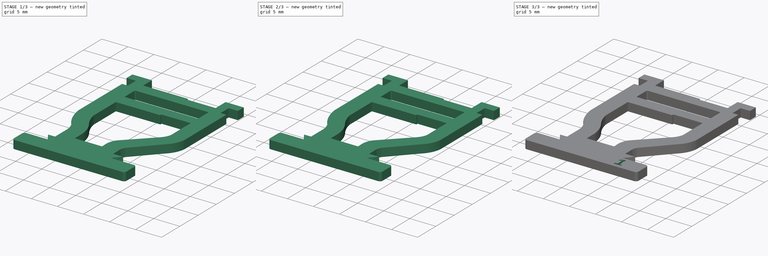
[diagram: build sequence overview — one tinted view per stage of 3, left to right]
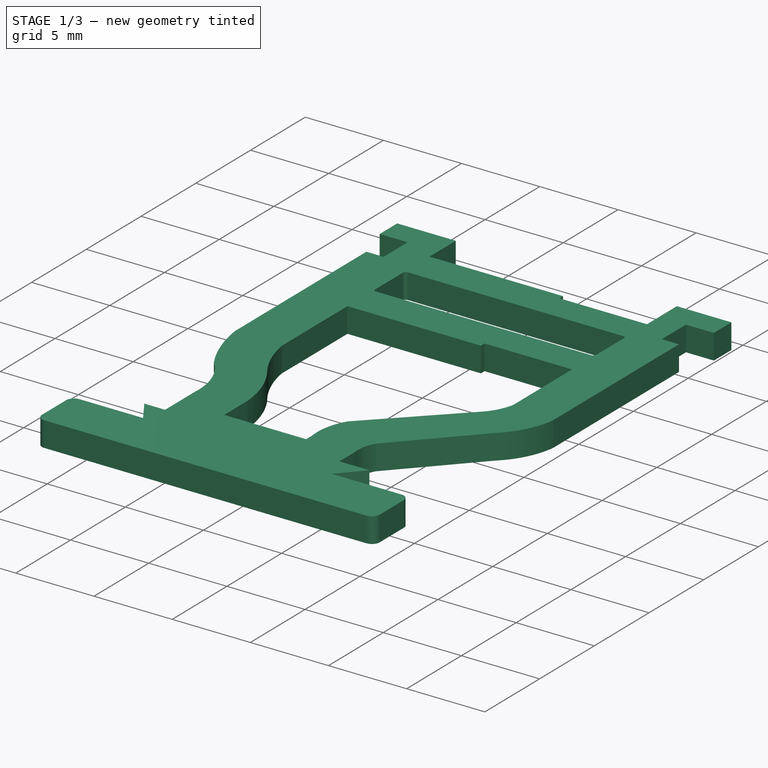
[diagram: stage 1 of 3 — iso view after this stage's code; geometry added in this stage tinted green]
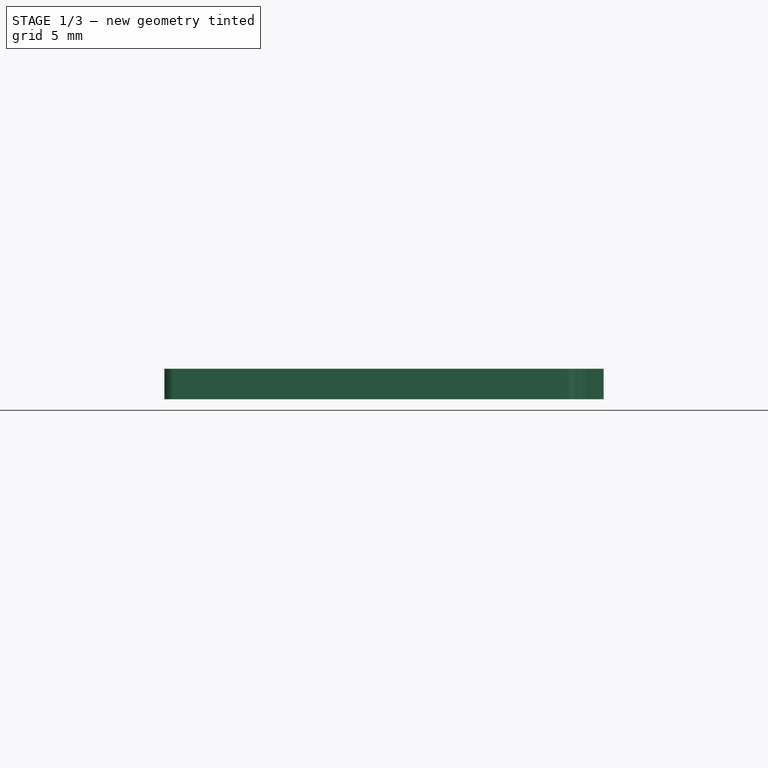
[diagram: stage 1 of 3 — front view after this stage's code; geometry added in this stage tinted green]
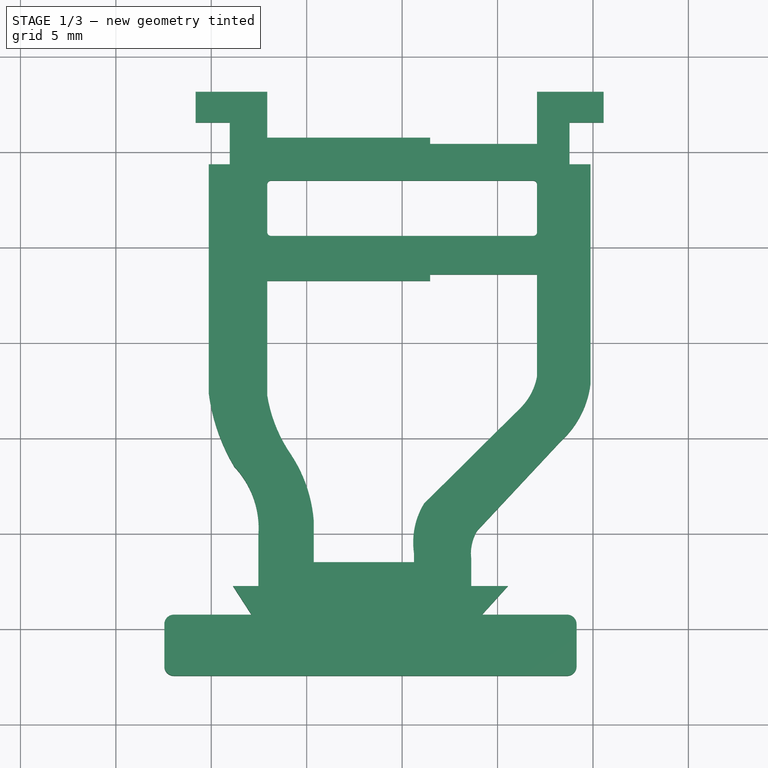
[diagram: stage 1 of 3 — top view after this stage's code; geometry added in this stage tinted green]
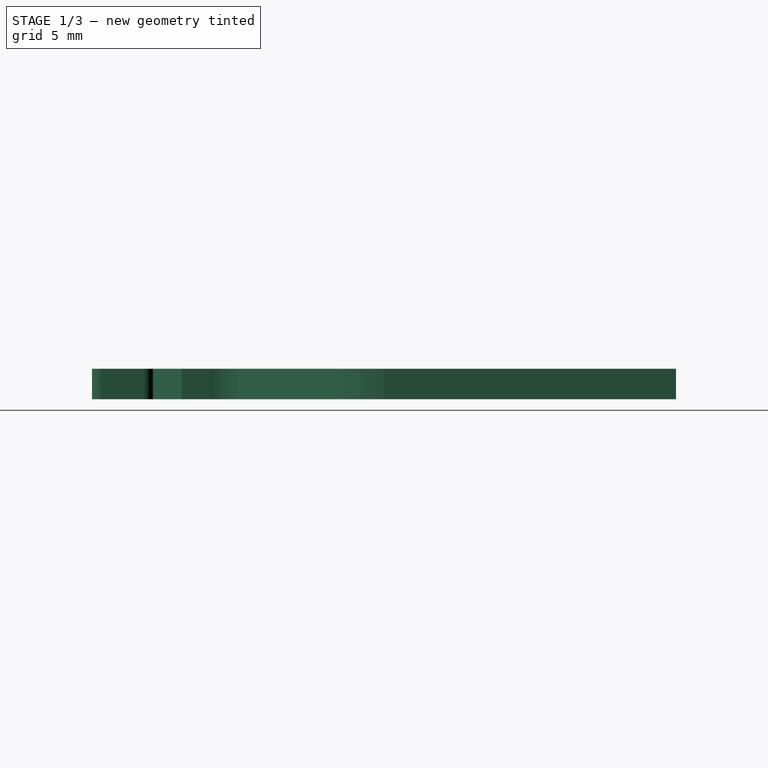
[diagram: stage 1 of 3 — right view after this stage's code; geometry added in this stage tinted green]
FCSTD DOCUMENT  (FreeCAD 0.21R33771 (Git))
Label: WE-P-10B699-706
License: All rights reserved
LicenseURL: http://en.wikipedia.org/wiki/All_rights_reserved
objects: PartDesign::Pocket×5, Sketcher::SketchObject×4, Part::Part2DObjectPython×3, Spreadsheet::Sheet×1, PartDesign::Pad×1, PartDesign::Body×1
note: 20 computed .brp shape members not serialized (recipe doc carries the construction recipe); baked Part::Feature solids carry a one-line shape summary decoded from their .brp

FEATURE [Sketcher::SketchObject] Sketch  label="BlankCardSketch"
  FullyConstrained = false
  MapMode = 5
  Support = -> [XY_Plane]
  sketch-geometry (68):
    g0: LineSegment StartX=-9.03 StartY=9.35 StartZ=0 EndX=-9.03 EndY=11.55 EndZ=0
    g1: LineSegment StartX=-9.03 StartY=11.55 StartZ=0 EndX=-10.82 EndY=11.55 EndZ=0
    g2: LineSegment StartX=-10.82 StartY=11.55 StartZ=0 EndX=-10.82 EndY=13.15 EndZ=0
    g3: LineSegment StartX=8.77 StartY=9.35 StartZ=0 EndX=8.77 EndY=11.55 EndZ=0
    g4: LineSegment StartX=-10.82 StartY=13.15 StartZ=0 EndX=-7.07 EndY=13.15 EndZ=0
    g5: LineSegment StartX=7.07 StartY=13.15 StartZ=0 EndX=-7.07 EndY=13.15 EndZ=0
    g6: LineSegment StartX=7.07 StartY=13.15 StartZ=0 EndX=7.07 EndY=10.75 EndZ=0
    g7: ArcOfCircle CenterX=-6.87 CenterY=8.3 CenterZ=0 NormalX=0 NormalY=0 NormalZ=1 AngleXU=0 Radius=0.2 StartAngle=1.5708 EndAngle=3.14159
    g8: LineSegment StartX=-6.87 StartY=8.5 StartZ=0 EndX=6.87 EndY=8.5 EndZ=0
    g9: ArcOfCircle CenterX=6.87 CenterY=8.3 CenterZ=0 NormalX=0 NormalY=0 NormalZ=1 AngleXU=0 Radius=0.2 StartAngle=-1.8e-15 EndAngle=1.5708
    g10: LineSegment StartX=7.07 StartY=8.3 StartZ=0 EndX=7.07 EndY=5.8 EndZ=0
    g11: ArcOfCircle CenterX=6.87 CenterY=5.8 CenterZ=0 NormalX=0 NormalY=0 NormalZ=1 AngleXU=0 Radius=0.2 StartAngle=4.71239 EndAngle=6.28319
    g12: LineSegment StartX=6.87 StartY=5.6 StartZ=0 EndX=-6.87 EndY=5.6 EndZ=0
    g13: ArcOfCircle CenterX=-6.87 CenterY=5.8 CenterZ=0 NormalX=0 NormalY=0 NormalZ=1 AngleXU=0 Radius=0.2 StartAngle=3.14159 EndAngle=4.71239
    g14: LineSegment StartX=-7.07 StartY=5.8 StartZ=0 EndX=-7.07 EndY=8.3 EndZ=0
    g15: LineSegment StartX=-7.07 StartY=10.75 StartZ=0 EndX=-7.07 EndY=8.3 EndZ=0
    g16: LineSegment StartX=-7.07 StartY=13.15 StartZ=0 EndX=-7.07 EndY=10.75 EndZ=0
    g17: LineSegment StartX=-9.03 StartY=11.55 StartZ=0 EndX=8.77 EndY=11.55 EndZ=0
    g18: LineSegment StartX=6.87 StartY=8.5 StartZ=0 EndX=-1.8578 EndY=8.5 EndZ=0
    g19: LineSegment StartX=7.07 StartY=13.15 StartZ=0 EndX=10.56 EndY=13.15 EndZ=0
    g20: LineSegment StartX=10.56 StartY=13.15 StartZ=0 EndX=10.56 EndY=11.55 EndZ=0
    g21: LineSegment StartX=10.56 StartY=11.55 StartZ=0 EndX=8.77 EndY=11.55 EndZ=0
    g22: LineSegment StartX=-7.07 StartY=10.75 StartZ=0 EndX=7.07 EndY=10.75 EndZ=0
    g23: LineSegment StartX=8.77 StartY=9.35 StartZ=0 EndX=9.87 EndY=9.35 EndZ=0
    g24: LineSegment StartX=-4.63 StartY=-11.5 StartZ=0 EndX=0.62 EndY=-11.5 EndZ=0
    g25: LineSegment StartX=3.62 StartY=-12.75 StartZ=0 EndX=5.54 EndY=-12.75 EndZ=0
    g26: LineSegment StartX=4.18 StartY=-14.25 StartZ=0 EndX=9.14 EndY=-14.25 EndZ=0
    g27: LineSegment StartX=-7.53 StartY=-12.75 StartZ=0 EndX=-8.86 EndY=-12.75 EndZ=0
    g28: LineSegment StartX=-12.46 StartY=-14.25 StartZ=0 EndX=-12.46 EndY=-17.45 EndZ=0
    g29: LineSegment StartX=-12.46 StartY=-17.45 StartZ=0 EndX=9.14 EndY=-17.45 EndZ=0
    g30: LineSegment StartX=9.14 StartY=-17.45 StartZ=0 EndX=9.14 EndY=-14.25 EndZ=0
    g31: LineSegment StartX=-7.07 StartY=3.25 StartZ=0 EndX=7.07 EndY=3.25 EndZ=0
    g32: LineSegment StartX=3.925 StartY=-9.85238 StartZ=0 EndX=8.30104 EndY=-5.16891 EndZ=0
    g33: LineSegment StartX=3.62 StartY=-12.75 StartZ=0 EndX=3.62 EndY=-11.3 EndZ=0
    g34: LineSegment StartX=9.87 StartY=-2.15 StartZ=0 EndX=9.87 EndY=9.35 EndZ=0
    g35: LineSegment StartX=7.07 StartY=3.25 StartZ=0 EndX=7.07 EndY=-1.75 EndZ=0
    g36: LineSegment StartX=1.14875 StartY=-8.42825 StartZ=0 EndX=6.19165 EndY=-3.4276 EndZ=0
    g37: LineSegment StartX=0.62 StartY=-11.5 StartZ=0 EndX=0.62 EndY=-11 EndZ=0
    g38: LineSegment StartX=-7.53 StartY=-12.75 StartZ=0 EndX=-7.53 EndY=-10.0322 EndZ=0
    g39: LineSegment StartX=-10.13 StartY=-2.65 StartZ=0 EndX=-10.13 EndY=9.35 EndZ=0
    g40: LineSegment StartX=-7.07 StartY=-2.75 StartZ=0 EndX=-7.07 EndY=3.25 EndZ=0
    g41: LineSegment StartX=-4.63 StartY=-11.5 StartZ=0 EndX=-4.63 EndY=-9.34693 EndZ=0
    g42: LineSegment StartX=7.07 StartY=10.75 StartZ=0 EndX=7.07 EndY=8.3 EndZ=0
    g43: LineSegment StartX=-10.13 StartY=9.35 StartZ=0 EndX=-9.03 EndY=9.35 EndZ=0
    g44: ArcOfCircle CenterX=4.46179 CenterY=-10.4496 CenterZ=0 NormalX=0 NormalY=0 NormalZ=1 AngleXU=0 Radius=3.88101 StartAngle=2.59376 EndAngle=3.28388
    g45: ArcOfCircle CenterX=5.92432 CenterY=-11.0296 CenterZ=0 NormalX=0 NormalY=0 NormalZ=1 AngleXU=0 Radius=2.32014 StartAngle=2.60945 EndAngle=3.25842
    g46: ArcOfCircle CenterX=5.02011 CenterY=-1.54662 CenterZ=0 NormalX=0 NormalY=0 NormalZ=1 AngleXU=0 Radius=4.88728 StartAngle=5.44838 EndAngle=6.15941
    g47: ArcOfCircle CenterX=4.00525 CenterY=-1.21412 CenterZ=0 NormalX=0 NormalY=0 NormalZ=1 AngleXU=0 Radius=3.11125 StartAngle=5.49163 EndAngle=6.11008
    g48: ArcOfCircle CenterX=0.429923 CenterY=-1.54964 CenterZ=0 NormalX=0 NormalY=0 NormalZ=1 AngleXU=0 Radius=7.59537 StartAngle=3.3003 EndAngle=3.74462
    g49: ArcOfCircle CenterX=-0.181794 CenterY=-1.34621 CenterZ=0 NormalX=0 NormalY=0 NormalZ=1 AngleXU=0 Radius=10.0333 StartAngle=3.27191 EndAngle=3.67983
    g50: ArcOfCircle CenterX=-12.1926 CenterY=-9.70134 CenterZ=0 NormalX=0 NormalY=0 NormalZ=1 AngleXU=0 Radius=4.67436 StartAngle=6.21234 EndAngle=7.0407
    g51: ArcOfCircle CenterX=-11.9235 CenterY=-9.89647 CenterZ=0 NormalX=0 NormalY=0 NormalZ=1 AngleXU=0 Radius=7.31416 StartAngle=0.0752039 EndAngle=0.585049
    g52: LineSegment StartX=-7.53 StartY=-12.75 StartZ=0 EndX=3.62 EndY=-12.75 EndZ=0
    g53: ArcOfCircle CenterX=-11.96 CenterY=-14.75 CenterZ=0 NormalX=0 NormalY=0 NormalZ=1 AngleXU=0 Radius=0.5 StartAngle=1.5708 EndAngle=3.14159
    g54: ArcOfCircle CenterX=8.64 CenterY=-14.75 CenterZ=0 NormalX=0 NormalY=0 NormalZ=1 AngleXU=0 Radius=0.5 StartAngle=9e-16 EndAngle=1.5708
    g55: LineSegment StartX=9.14 StartY=-14.75 StartZ=0 EndX=9.14 EndY=-16.95 EndZ=0
    g56: ArcOfCircle CenterX=8.64 CenterY=-16.95 CenterZ=0 NormalX=0 NormalY=0 NormalZ=1 AngleXU=0 Radius=0.5 StartAngle=4.71239 EndAngle=6.28319
    g57: LineSegment StartX=8.64 StartY=-17.45 StartZ=0 EndX=-11.96 EndY=-17.45 EndZ=0
    g58: ArcOfCircle CenterX=-11.96 CenterY=-16.95 CenterZ=0 NormalX=0 NormalY=0 NormalZ=1 AngleXU=0 Radius=0.5 StartAngle=3.14159 EndAngle=4.71239
    g59: LineSegment StartX=-12.46 StartY=-16.95 StartZ=0 EndX=-12.46 EndY=-14.75 EndZ=0
    g60: GeomPoint X=-12.46 Y=-14.25 Z=0
    g61: GeomPoint X=9.14 Y=-17.45 Z=0
    g62: LineSegment StartX=8.64 StartY=-14.25 StartZ=0 EndX=4.18 EndY=-14.25 EndZ=0
    g63: LineSegment StartX=-8.86 StartY=-12.75 StartZ=0 EndX=-7.89 EndY=-14.25 EndZ=0
    g64: LineSegment StartX=-11.96 StartY=-14.25 StartZ=0 EndX=-7.89 EndY=-14.25 EndZ=0
    g65: LineSegment StartX=-12.46 StartY=-14.25 StartZ=0 EndX=-7.89 EndY=-14.25 EndZ=0
    g66: LineSegment StartX=5.54 StartY=-12.75 StartZ=0 EndX=4.18 EndY=-14.25 EndZ=0
    g67: LineSegment StartX=-7.89 StartY=-14.25 StartZ=0 EndX=4.18 EndY=-14.25 EndZ=0
  constraints (165):
    c: Vertical(g0)
    c: Coincident(g1,g0)
    c: Horizontal(g1)
    c: Coincident(g2,g1)
    c: Vertical(g2)
    c: DistanceY(g2,g2) = 1.6
    c: Vertical(g3)
    c: Coincident(g4,g2)
    c: Horizontal(g4)
    c: DistanceX(g4,g4) = 3.75
    c: Coincident(g5,g4)
    c: Vertical(g6)
    c: Tangent(g7,g8) = 1.5708
    c: Tangent(g8,g9) = 1.5708
    c: Tangent(g9,g10) = 1.5708
    c: Tangent(g10,g11) = 1.5708
    c: Tangent(g11,g12) = 1.5708
    c: Tangent(g12,g13) = 1.5708
    c: Tangent(g13,g14) = 1.5708
    c: Tangent(g14,g7) = 1.5708
    c: Horizontal(g8)
    c: Horizontal(g12)
    c: Vertical(g10)
    c: Vertical(g14)
    c: Equal(g9,g11)
    c: Equal(g11,g13)
    c: DistanceX(g7,g9) = 14.14
    c: Radius(g7) = 0.2
    c: Coincident(g15,g7)
    c: Vertical(g15)
    c: Vertical(g16)
    c: Coincident(g15,g16)
    c: Coincident(g17,g0)
    c: Coincident(g17,g3)
    c: Coincident(g16,g4)
    c: DistanceY(g0,g0) = 2.2
    c: Coincident(g18,g8)
    c: Horizontal(g18)
    c: Horizontal(g17)
    c: Symmetric(g4,g5,g-2)
    c: Coincident(g19,g6)
    c: Horizontal(g19)
    c: Coincident(g20,g19)
    c: Vertical(g20)
    c: Coincident(g21,g20)
    c: Coincident(g21,g3)
    c: Horizontal(g21)
    c: Equal(g1,g21)
    c: Equal(g2,g20)
    c: Equal(g3,g0)
    c: Coincident(g22,g16)
    c: Coincident(g22,g6)
    c: Coincident(g23,g3)
    c: Horizontal(g23)
    c: DistanceX(g24,g24) = 5.25
    c: Horizontal(g25)
    c: Horizontal(g26)
    c: Horizontal(g27)
    c: Vertical(g28)
    c: Coincident(g29,g28)
    c: Horizontal(g29)
    c: Coincident(g30,g29)
    c: Coincident(g30,g26)
    c: Vertical(g30)
    c: DistanceX(g29,g29) = 21.6
    c: DistanceX(g27,g24) = 2.9
    c: DistanceX(g24,g25) = 3
    c: DistanceY(g28,g2) = 30.6
    c: DistanceY(g28,g28) = 3.2
    c: Equal(g28,g30)
    c: DistanceY(g63,g27) = 1.5
    c: DistanceX(g31,g31) = 14.14
    c: Symmetric(g7,g9,g-2)
    c: Symmetric(g31,g31,g-2)
    c: DistanceY(g31,g12) = 2.35
    c: Coincident(g33,g25)
    c: Vertical(g33)
    c: Coincident(g34,g23)
    c: Vertical(g34)
    c: Coincident(g35,g31)
    c: Vertical(g35)
    c: Coincident(g37,g24)
    c: Vertical(g37)
    c: Horizontal(g24)
    c: Coincident(g38,g27)
    c: Vertical(g38)
    c: Vertical(g39)
    c: Coincident(g40,g31)
    c: Vertical(g40)
    c: Coincident(g41,g24)
    c: Vertical(g41)
    c: DistanceY(g28,g31) = 17.5
    c: Symmetric(g16,g6,g-2)
    c: DistanceX(g39,g23) = 20
    c: Coincident(g42,g6)
    c: Coincident(g42,g9)
    c: DistanceX(g6,g23) = 2.8
    c: DistanceY(g28,g24) = 5.95
    c: Coincident(g43,g39)
    c: Coincident(g43,g0)
    c: Horizontal(g43)
    c: DistanceY(g7,g16) = 2.25
    c: DistanceY(g28,g16) = 25
    c: DistanceY(g-1,g31) = 3.25
    c: DistanceY(g31,g6) = 7.5
    c: DistanceY(g35,g35) = 5
    c: DistanceY(g34,g34) = 11.5
    c: DistanceY(g33,g33) = 1.45
    c: DistanceY(g37,g37) = 0.5
    c: DistanceX(g28,g39) = 2.33
    c: Coincident(g44,g37)
    c: Coincident(g44,g36)
    c: Coincident(g45,g33)
    c: Coincident(g45,g32)
    c: Coincident(g46,g34)
    c: Coincident(g47,g35)
    c: Coincident(g47,g36)
    c: DistanceY(g39,g39) = 12
    c: DistanceY(g40,g40) = 6
    c: Coincident(g48,g40)
    c: Coincident(g49,g39)
    c: DistanceX(g25,g25) = 1.92
    c: Coincident(g50,g49)
    c: Coincident(g50,g38)
    c: Coincident(g51,g48)
    c: Coincident(g51,g41)
    c: Coincident(g32,g46)
    c: DistanceX(g33,g26) = 5.52
    c: DistanceX(g27,g27) = 1.33
    c: Coincident(g52,g27)
    c: Coincident(g52,g25)
    c: Tangent(g54,g55) = 1.5708
    c: Tangent(g55,g56) = 1.5708
    c: Tangent(g56,g57) = 1.5708
    c: Tangent(g57,g58) = 1.5708
    c: Tangent(g58,g59) = 1.5708
    c: Tangent(g59,g53) = 1.5708
    c: Horizontal(g57)
    c: Vertical(g55)
    c: Vertical(g59)
    c: Equal(g53,g54)
    c: Equal(g54,g56)
    c: Equal(g56,g58)
    c: PointOnObject(g60,g59)
    c: PointOnObject(g61,g55)
    c: PointOnObject(g61,g57)
    c: Coincident(g61,g29)
    c: Radius(g54) = 0.5
    c: Coincident(g62,g54)
    c: Horizontal(g62)
    c: Coincident(g64,g53)
    c: Coincident(g64,g63)
    c: Horizontal(g64)
    c: Coincident(g65,g28)
    c: Coincident(g65,g63)
    c: Horizontal(g65)
    c: Coincident(g63,g27)
    c: Coincident(g66,g25)
    c: Coincident(g62,g66)
    c: Coincident(g26,g62)
    c: Coincident(g67,g63)
    c: Coincident(g67,g62)
    c: DistanceX(g62,g62) = 4.46
    c: DistanceX(g64,g64) = 4.07
    c: Horizontal(g52)
FEATURE [Part::Part2DObjectPython] ShapeString001  label="RelayTypeShapeString"  # Draft 2D object (typed FeaturePython)
  FontFile = <path>
  MakeFace = true
  Placement = pos=(-4,-16.75,1.6) rot=(0,0,1;0rad)
  Size = 2.5
  String = A
  Tracking = 0
  expr: .Placement.Base.z = Spreadsheet.CardThickness
  expr: String = Spreadsheet.RelayType
FEATURE [Sketcher::SketchObject] Sketch004  label="P-10B699"
  AttachmentOffset = pos=(0,0,1.6) rot=(0,0,1;0rad)
  FullyConstrained = true
  MapMode = 5
  Placement = pos=(0,0,1.6) rot=(0,0,1;0rad)
  Support = -> [XY_Plane]
  expr: .AttachmentOffset.Base.z = Spreadsheet.CardThickness
  expr: Constraints[20] = Spreadsheet.EM_Cutout
  expr: Constraints[7] = Spreadsheet.B_Cutout
  sketch-geometry (9):
    g0: LineSegment StartX=7.07 StartY=3.58 StartZ=0 EndX=1.47 EndY=3.58 EndZ=0
    g1: LineSegment StartX=7.07 StartY=3.58 StartZ=0 EndX=7.07 EndY=3.25 EndZ=0
    g2: LineSegment StartX=1.47 StartY=3.58 StartZ=0 EndX=1.47 EndY=3.25 EndZ=0
    g3: LineSegment StartX=1.47 StartY=3.25 StartZ=0 EndX=7.07 EndY=3.25 EndZ=0
    g4: LineSegment StartX=7.07 StartY=10.75 StartZ=0 EndX=1.47 EndY=10.75 EndZ=0
    g5: LineSegment StartX=1.47 StartY=10.75 StartZ=0 EndX=1.47 EndY=10.42 EndZ=0
    g6: LineSegment StartX=1.47 StartY=10.42 StartZ=0 EndX=7.07 EndY=10.42 EndZ=0
    g7: LineSegment StartX=7.07 StartY=10.42 StartZ=0 EndX=7.07 EndY=10.75 EndZ=0
    g8: LineSegment StartX=7.07 StartY=10.75 StartZ=0 EndX=7.07 EndY=3.25 EndZ=0
  constraints (26):
    c: Horizontal(g0)
    c: Vertical(g1)
    c: Coincident(g0,g1)
    c: Coincident(g2,g0)
    c: Vertical(g2)
    c: Coincident(g3,g2)
    c: Coincident(g3,g1)
    c: DistanceY(g2,g2) = 0.33
    c: DistanceY(g-1,g1) = 3.25
    c: DistanceX(g-1,g1) = 7.07
    c: DistanceX(g0,g0) = 5.6
    c: Coincident(g4,g5)
    c: Coincident(g5,g6)
    c: Coincident(g6,g7)
    c: Coincident(g7,g4)
    c: Horizontal(g4)
    c: Horizontal(g6)
    c: Vertical(g5)
    c: Vertical(g7)
    c: DistanceX(g6,g6) = 5.6
    c: DistanceY(g5,g5) = 0.33
    c: Coincident(g8,g4)
    c: Coincident(g8,g1)
    c: Vertical(g8)
    c: DistanceY(g8,g8) = 7.5
    c: Horizontal(g3)
FEATURE [Part::Part2DObjectPython] ShapeString002  label="CardNo"  # Draft 2D object (typed FeaturePython)
  FontFile = <path>
  MakeFace = true
  Placement = pos=(4,-16.75,1.6) rot=(0,0,1;0rad)
  Size = 2.5
  String = 1
  Tracking = 0
  expr: .Placement.Base.z = Spreadsheet.CardThickness
  expr: String = Spreadsheet.CardNo
FEATURE [Spreadsheet::Sheet] Spreadsheet
  cells = A1='WE-P-10B699_704 Configuration; A2='Parameter; B2='Value; C2='Description; D2='How to use this model; A3='General Parameters; D3='1. Select Card Number.  This number is from 1 through 8, and is stamped into the lower right corner of the original card.; A4='Card Number; B4(CardNo)=1; C4='Card profile index (1, 3, 5, or 7); D4='2. Note that lower cards are odd numbered.  To generate the upper card, choose the odd-numbered card and flip it after printing.; A5='Relay Type; B5(RelayType)='A; C5='Relay type text, for example: AK-14; D5='3. Enter relay type text.; D6='4. View the model, and select the body (double click on the card rendering with the mouse) and export as an STL mesh file.; D7='5. Print on your 3D-printer.  Recommend using PETG or ABS filament for strength.  PLA may work for light-duty use.; A8='Advanced Parameters; A9='TextHeight; B9(TextHeight)=0.3; A10='CardNoTextDepth; B10(TextDepth)=0.3; A12='CardThickness; B12(CardThickness)==1.6 mm; A13='B Cutout; B13(B_Cutout)=0.33; A14='EB Cutout; B14(EB_Cutout)==0 mm; A16='M Cutout; B16==0 mm; A17='EM Cutout; B17(EM_Cutout)==0.33 mm
FEATURE [Sketcher::SketchObject] Sketch005  label="P-10B701"
  AttachmentOffset = pos=(0,0,1.6) rot=(0,0,1;0rad)
  FullyConstrained = true
  MapMode = 5
  Placement = pos=(0,0,1.6) rot=(0,0,1;0rad)
  Support = -> [XY_Plane]
  expr: .AttachmentOffset.Base.z = Spreadsheet.CardThickness
  expr: Constraints[7] = Spreadsheet.B_Cutout
  sketch-geometry (4):
    g0: LineSegment StartX=7.07 StartY=3.58 StartZ=0 EndX=-7.07 EndY=3.58 EndZ=0
    g1: LineSegment StartX=7.07 StartY=3.58 StartZ=0 EndX=7.07 EndY=3.25 EndZ=0
    g2: LineSegment StartX=-7.07 StartY=3.58 StartZ=0 EndX=-7.07 EndY=3.25 EndZ=0
    g3: LineSegment StartX=-7.07 StartY=3.25 StartZ=0 EndX=7.07 EndY=3.25 EndZ=0
  constraints (11):
    c: Horizontal(g0)
    c: Vertical(g1)
    c: Coincident(g0,g1)
    c: Coincident(g2,g0)
    c: Vertical(g2)
    c: Coincident(g3,g2)
    c: Coincident(g3,g1)
    c: DistanceY(g2,g2) = 0.33
    c: Symmetric(g2,g1,g-2)
    c: DistanceY(g-1,g1) = 3.25
    c: DistanceX(g-1,g1) = 7.07
FEATURE [Sketcher::SketchObject] Sketch006  label="P-10B703"
  AttachmentOffset = pos=(0,0,1.6) rot=(0,0,1;0rad)
  FullyConstrained = true
  MapMode = 5
  Placement = pos=(0,0,1.6) rot=(0,0,1;0rad)
  Support = -> [XY_Plane]
  expr: .AttachmentOffset.Base.z = Spreadsheet.CardThickness
  expr: Constraints[20] = Spreadsheet.EM_Cutout
  expr: Constraints[7] = Spreadsheet.B_Cutout
  sketch-geometry (9):
    g0: LineSegment StartX=7.07 StartY=3.58 StartZ=0 EndX=-1.33 EndY=3.58 EndZ=0
    g1: LineSegment StartX=7.07 StartY=3.58 StartZ=0 EndX=7.07 EndY=3.25 EndZ=0
    g2: LineSegment StartX=-1.33 StartY=3.58 StartZ=0 EndX=-1.33 EndY=3.25 EndZ=0
    g3: LineSegment StartX=-1.33 StartY=3.25 StartZ=0 EndX=7.07 EndY=3.25 EndZ=0
    g4: LineSegment StartX=7.07 StartY=10.75 StartZ=0 EndX=-1.33 EndY=10.75 EndZ=0
    g5: LineSegment StartX=-1.33 StartY=10.75 StartZ=0 EndX=-1.33 EndY=10.42 EndZ=0
    g6: LineSegment StartX=-1.33 StartY=10.42 StartZ=0 EndX=7.07 EndY=10.42 EndZ=0
    g7: LineSegment StartX=7.07 StartY=10.42 StartZ=0 EndX=7.07 EndY=10.75 EndZ=0
    g8: LineSegment StartX=7.07 StartY=10.75 StartZ=0 EndX=7.07 EndY=3.25 EndZ=0
  constraints (26):
    c: Horizontal(g0)
    c: Vertical(g1)
    c: Coincident(g0,g1)
    c: Coincident(g2,g0)
    c: Vertical(g2)
    c: Coincident(g3,g2)
    c: Coincident(g3,g1)
    c: DistanceY(g2,g2) = 0.33
    c: DistanceY(g-1,g1) = 3.25
    c: DistanceX(g-1,g1) = 7.07
    c: DistanceX(g0,g0) = 8.4
    c: Coincident(g4,g5)
    c: Coincident(g5,g6)
    c: Coincident(g6,g7)
    c: Coincident(g7,g4)
    c: Horizontal(g4)
    c: Horizontal(g6)
    c: Vertical(g5)
    c: Vertical(g7)
    c: DistanceX(g6,g6) = 8.4
    c: DistanceY(g5,g5) = 0.33
    c: Coincident(g8,g4)
    c: Coincident(g8,g1)
    c: Vertical(g8)
    c: DistanceY(g8,g8) = 7.5
    c: Horizontal(g3)
FEATURE [Part::Part2DObjectPython] ShapeString003  label="CardNoReverse"  # Draft 2D object (typed FeaturePython)
  FontFile = <path>
  MakeFace = true
  Placement = pos=(-7,-16.75,0) rot=(0,1,0;3.14159rad)
  Size = 2.5
  String = 2
  Tracking = 0
  expr: .Placement.Base.z = 0
  expr: .Placement.Rotation.Angle = 180
  expr: String = Spreadsheet.CardNo + 1
FEATURE [PartDesign::Pad] Pad  label="CardPad"
  Direction = (0,0,1)
  Length = 1.6
  Length2 = 10
  Profile = -> Sketch
  ReferenceAxis = -> Sketch [N_Axis]
  Type = 0
  expr: Length = Spreadsheet.CardThickness
FEATURE [PartDesign::Pocket] Pocket  label="P-10B699_Pocket"
  BaseFeature = -> Pad
  Direction = (0,0,-1)
  Length = 5
  Length2 = 5
  Profile = -> Sketch004
  ReferenceAxis = -> Sketch004 [N_Axis]
  Type = 0
  expr: Length = Spreadsheet.CardNo == 1 ? 5 : (Spreadsheet.CardNo == 2 ? 5 : 0.001)
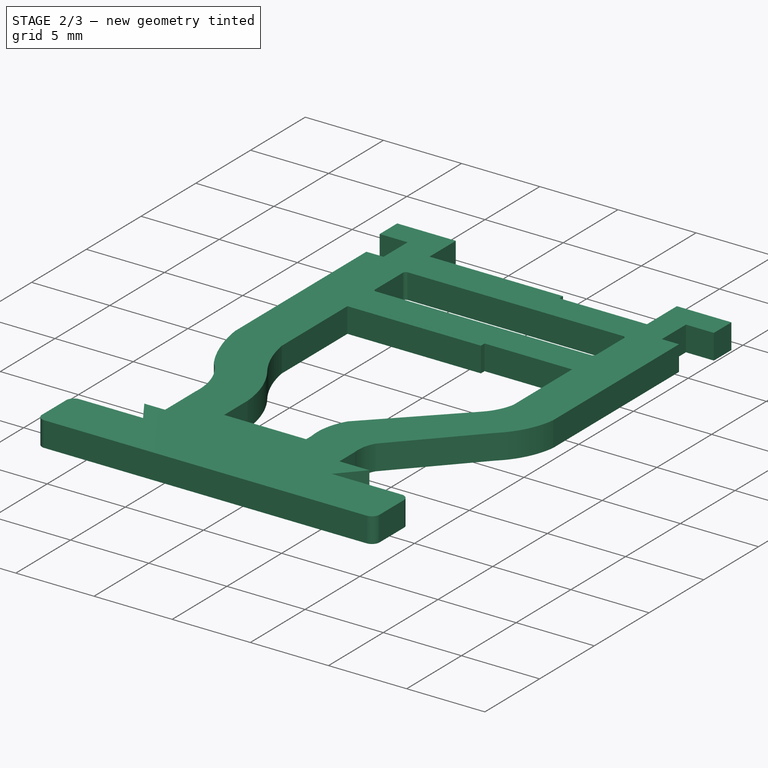
[diagram: stage 2 of 3 — iso view after this stage's code; geometry added in this stage tinted green]
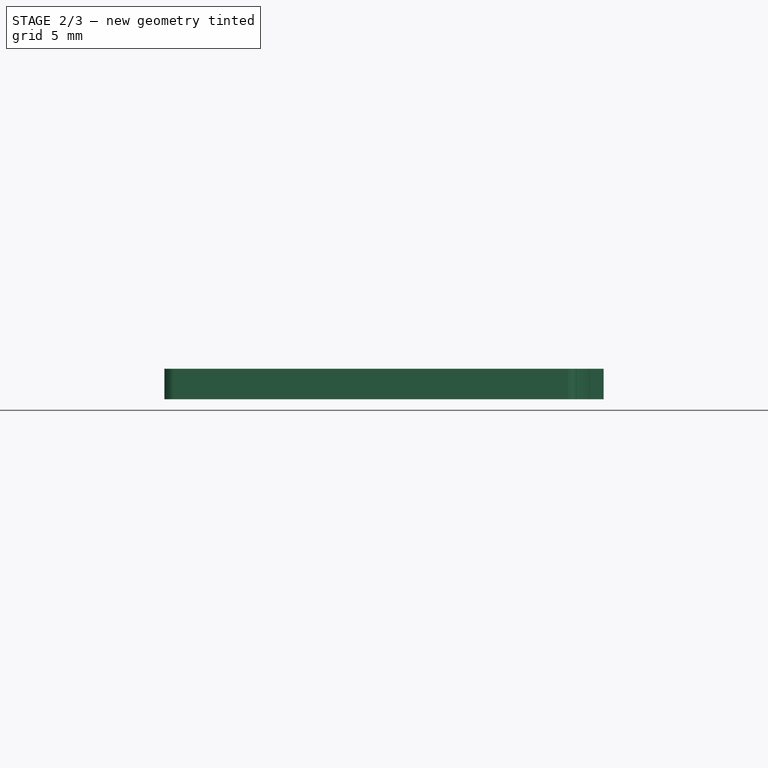
[diagram: stage 2 of 3 — front view after this stage's code; geometry added in this stage tinted green]
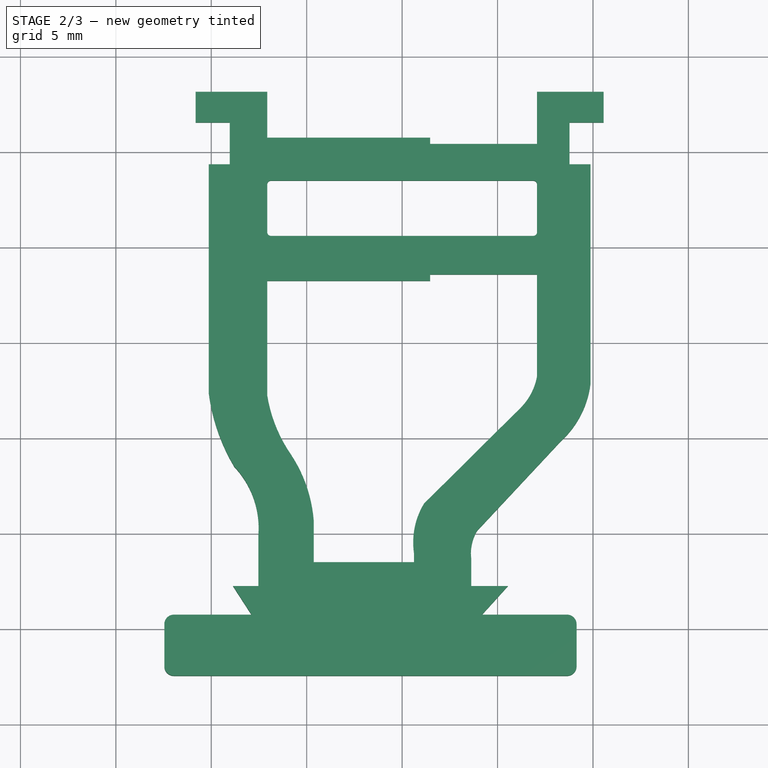
[diagram: stage 2 of 3 — top view after this stage's code; geometry added in this stage tinted green]
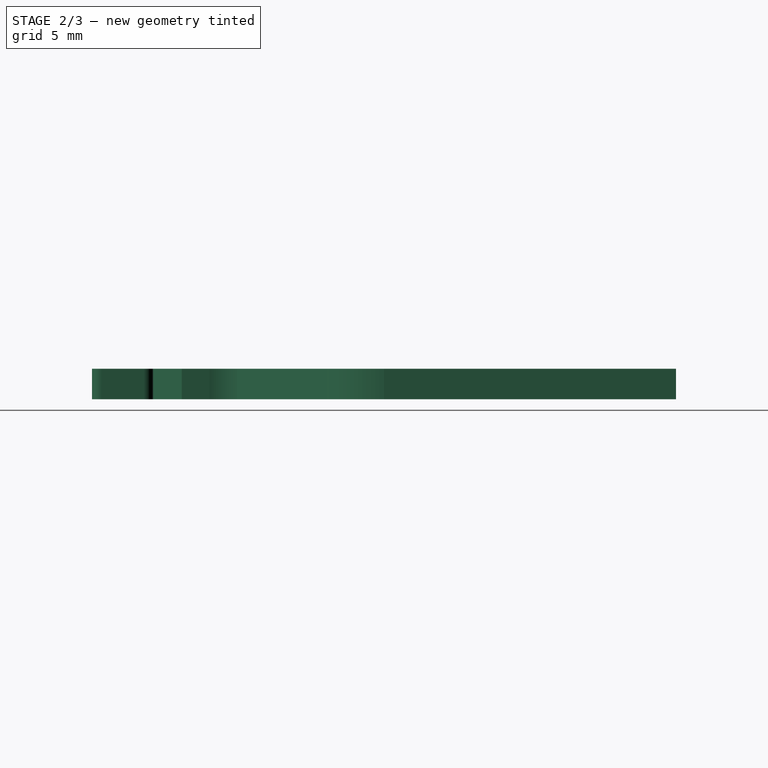
[diagram: stage 2 of 3 — right view after this stage's code; geometry added in this stage tinted green]
FEATURE [PartDesign::Pocket] Pocket002  label="P-10B701_Pocket"
  BaseFeature = -> Pocket
  Direction = (0,0,-1)
  Length = 0.001
  Length2 = 5
  Profile = -> Sketch005
  ReferenceAxis = -> Sketch005 [N_Axis]
  Type = 0
  expr: Length = Spreadsheet.CardNo == 3 ? 5 : (Spreadsheet.CardNo == 4 ? 5 : 0.001)
FEATURE [PartDesign::Pocket] Pocket001  label="P-10B703_Pocket"
  BaseFeature = -> Pocket002
  Direction = (0,0,-1)
  Length = 0.001
  Length2 = 5
  Profile = -> Sketch006
  ReferenceAxis = -> Sketch006 [N_Axis]
  Type = 0
  expr: Length = Spreadsheet.CardNo == 5 ? 5 : (Spreadsheet.CardNo == 6 ? 5 : 0.001)
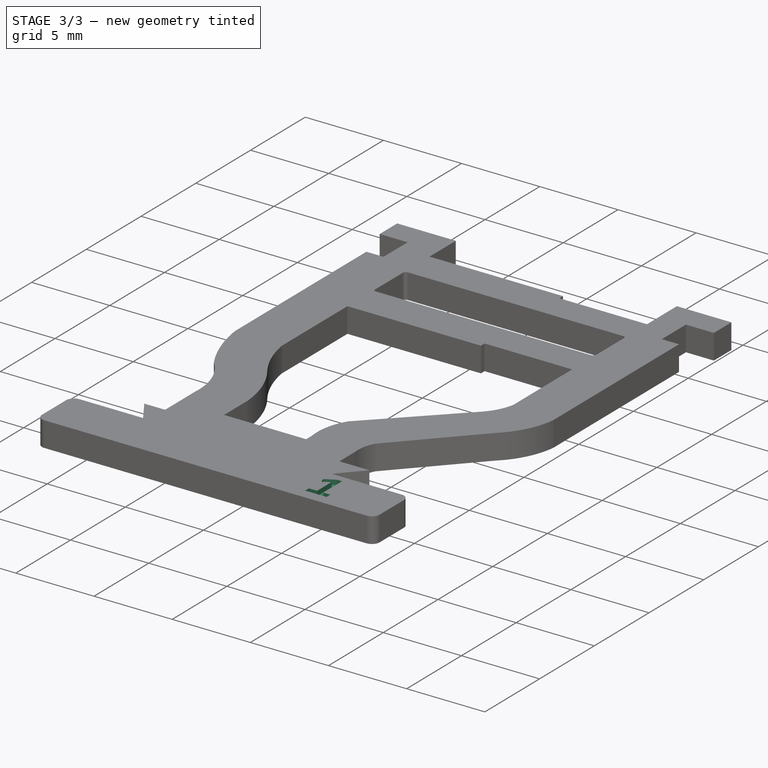
[diagram: stage 3 of 3 — iso view after this stage's code; geometry added in this stage tinted green]
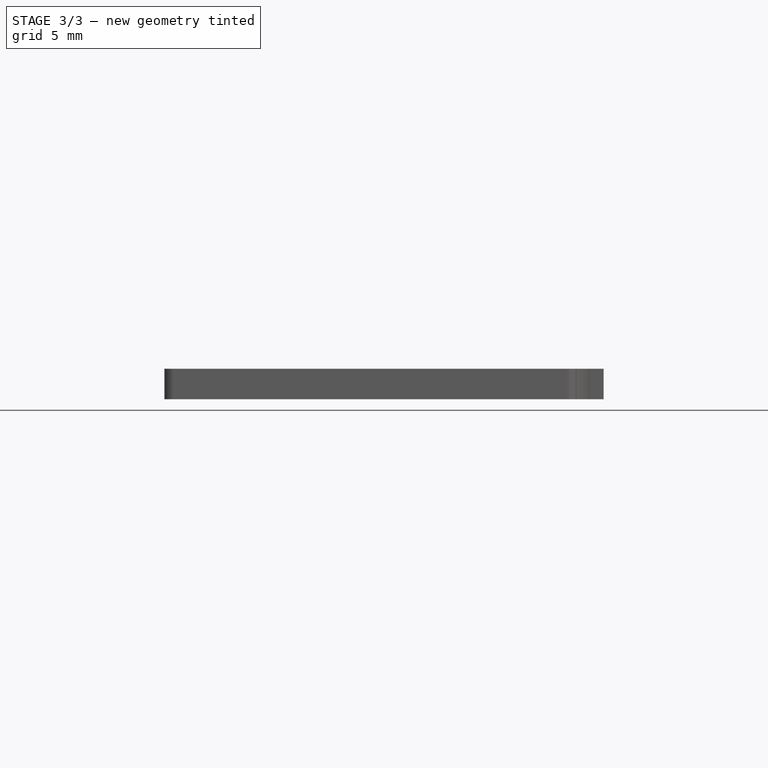
[diagram: stage 3 of 3 — front view after this stage's code; geometry added in this stage tinted green]
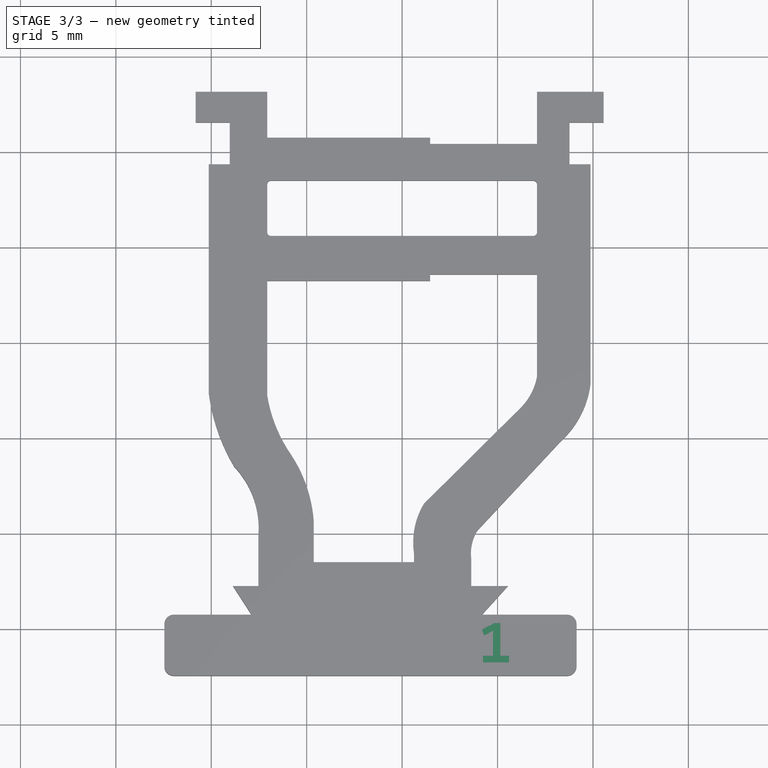
[diagram: stage 3 of 3 — top view after this stage's code; geometry added in this stage tinted green]
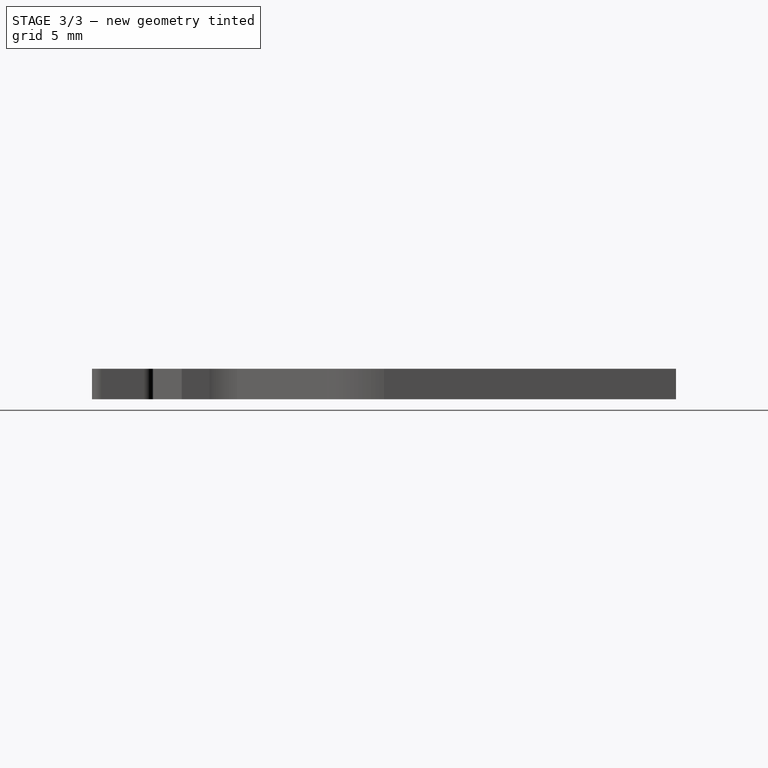
[diagram: stage 3 of 3 — right view after this stage's code; geometry added in this stage tinted green]
FEATURE [PartDesign::Pocket] Pocket003  label="CardNoReversePocket"
  BaseFeature = -> Pocket001
  Direction = (-1e-16,0,1)
  Length = 0.3
  Length2 = 5
  Profile = -> ShapeString003
  ReferenceAxis = -> ShapeString003 [N_Axis]
  Type = 0
  expr: Length = Spreadsheet.TextDepth
FEATURE [PartDesign::Pocket] Pocket004  label="CardNoPocket"
  BaseFeature = -> Pocket003
  Direction = (0,0,-1)
  Length = 0.3
  Length2 = 5
  Profile = -> ShapeString002
  ReferenceAxis = -> ShapeString002 [N_Axis]
  Type = 0
  expr: Length = Spreadsheet.TextDepth
FEATURE [PartDesign::Body] Body
  Group = -> [Sketch,ShapeString001,ShapeString002,Sketch004,Pad,Sketch005,Sketch006,Pocket,Pocket002,Pocket001,ShapeString003,Pocket003,Pocket004]
  Origin = -> Origin
  Tip = -> Pocket004
note: 3 file-system paths scrubbed to <path> (originals preserved in the JSON sidecar)
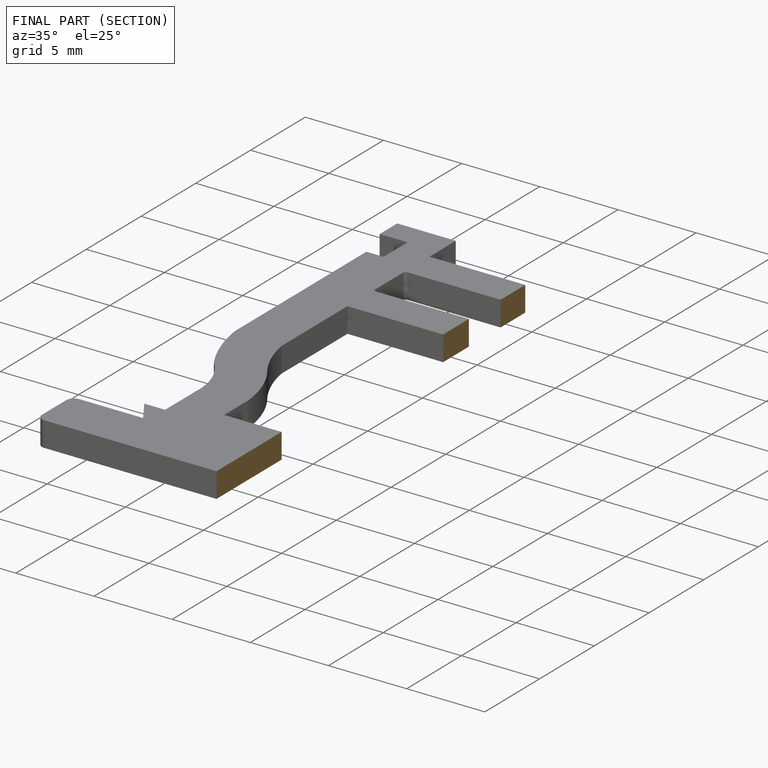
[diagram: finished part — half-section view (interior)]
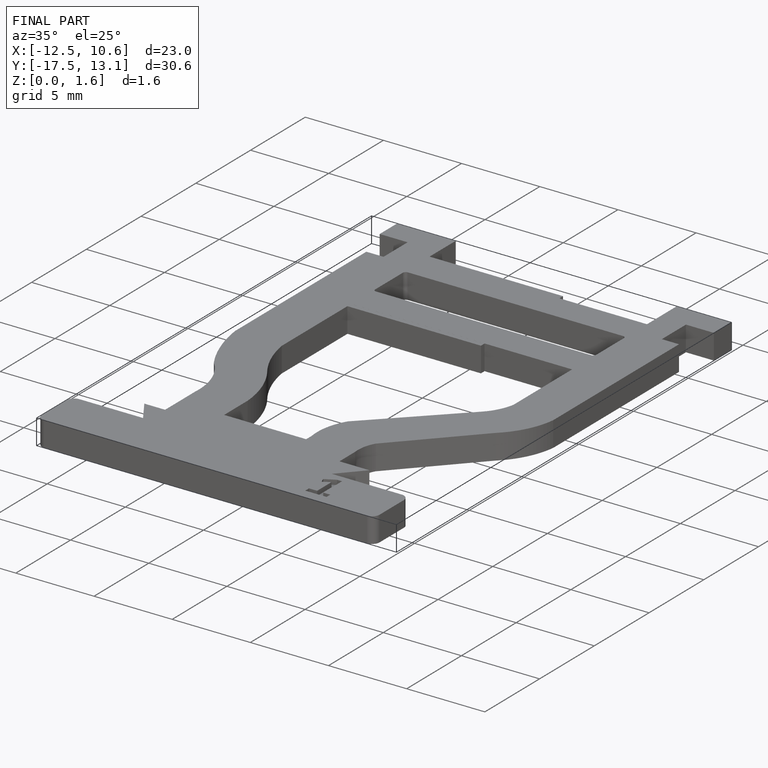
[diagram: finished part — iso view with bounding-box wireframe]
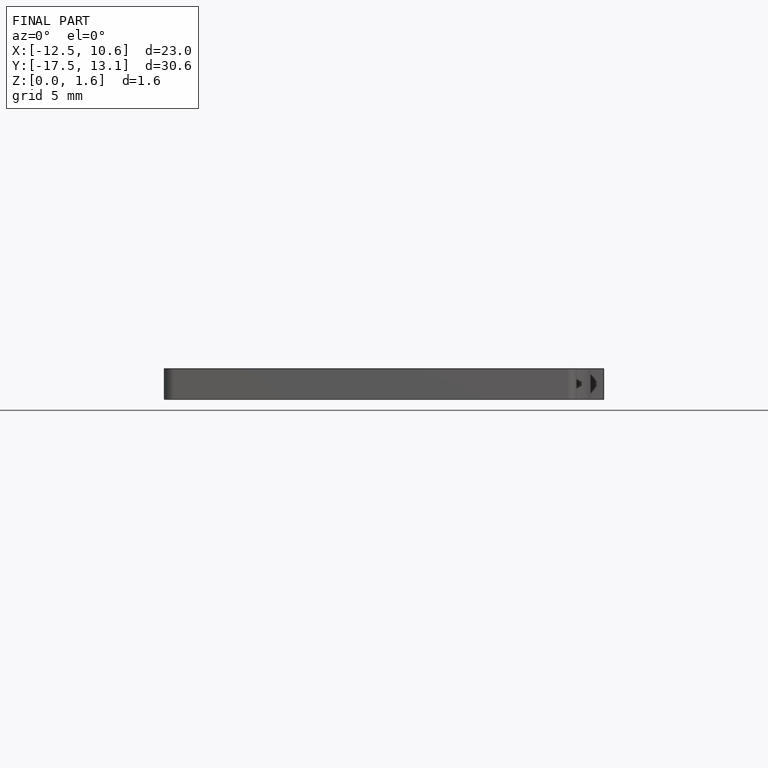
[diagram: finished part — front view with bounding-box wireframe]
